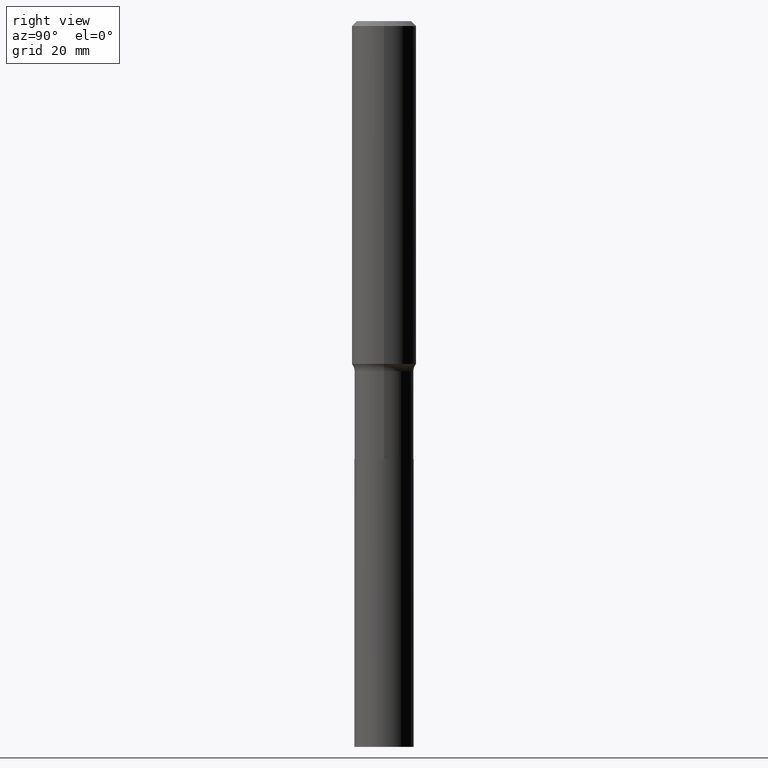
[diagram: clean part render]
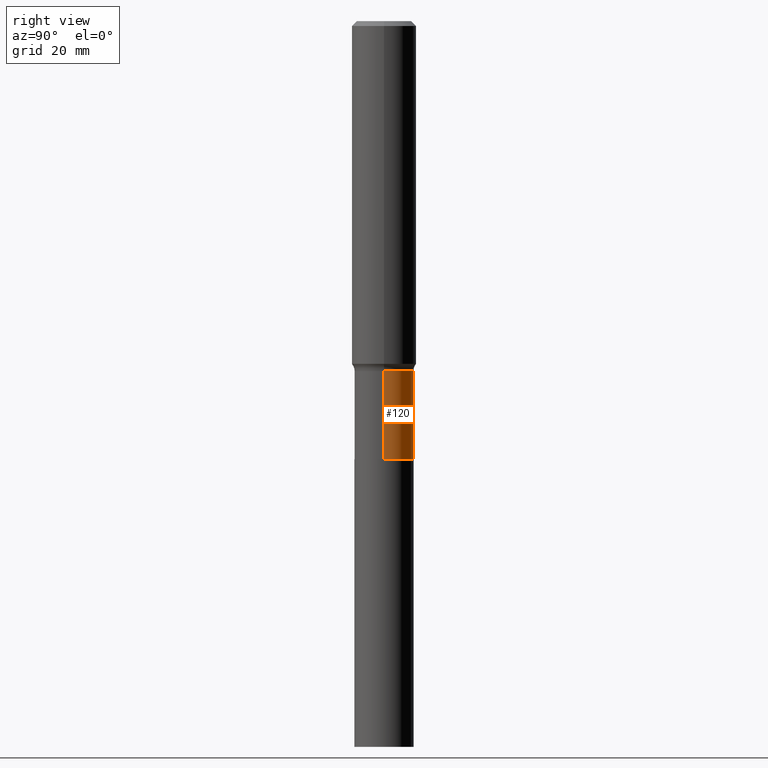
[diagram: same view with one face highlighted and labeled with its STEP entity id]
A machine part, right view. The second image highlights one B-rep face of the part: STEP entity #120.
In plain terms, the highlighted cylindrical surface (edge-blend (fillet) strip) has radius 5.5004 mm, axis along (-0, 0, 1).
Its self-contained STEP definition (entity closure, byte-faithful):
#9 = VERTEX_POINT ( 'NONE', #411 ) ;
#11 = VECTOR ( 'NONE', #77, 39.37007874015748143 ) ;
#31 = CYLINDRICAL_SURFACE ( 'NONE', #457, 0.2165499999999999647 ) ;
#37 = EDGE_CURVE ( 'NONE', #9, #321, #82, .T. ) ;
#51 = VERTEX_POINT ( 'NONE', #426 ) ;
#63 = DIRECTION ( 'NONE',  ( 1.000000000000000000, -6.982962677686263555E-15, 0.000000000000000000 ) ) ;
#72 = CARTESIAN_POINT ( 'NONE',  ( 6.267736550252506452E-29, -8.948666671454983859E-15, -2.563000000000000611 ) ) ;
#77 = DIRECTION ( 'NONE',  ( -2.445468806185136877E-29, 3.491481338843145188E-15, 1.000000000000000000 ) ) ;
#81 = ORIENTED_EDGE ( 'NONE', *, *, #322, .F. ) ;
#82 = CIRCLE ( 'NONE', #444, 0.2165500000000000480 ) ;
#83 = CIRCLE ( 'NONE', #319, 0.2165499999999999370 ) ;
#84 = LINE ( 'NONE', #122, #11 ) ;
#91 = DIRECTION ( 'NONE',  ( 1.000000000000000000, -6.982962677686266711E-15, 4.876176775795936353E-29 ) ) ;
#101 = CARTESIAN_POINT ( 'NONE',  ( -0.2165500000000000203, -8.536861979278111098E-15, -3.208500000000000352 ) ) ;
#120 = ADVANCED_FACE ( 'NONE', ( #136 ), #31, .T. ) ;
#121 = ORIENTED_EDGE ( 'NONE', *, *, #436, .F. ) ;
#122 = CARTESIAN_POINT ( 'NONE',  ( 0.2165499999999999647, -1.512160567852960823E-15, 1.055936080798609895E-29 ) ) ;
#136 = FACE_OUTER_BOUND ( 'NONE', #332, .T. ) ;
#149 = VERTEX_POINT ( 'NONE', #238 ) ;
#155 = ORIENTED_EDGE ( 'NONE', *, *, #423, .T. ) ;
#179 = DIRECTION ( 'NONE',  ( -2.445468806185136597E-29, 3.491481338843145583E-15, 1.000000000000000000 ) ) ;
#182 = ORIENTED_EDGE ( 'NONE', *, *, #37, .T. ) ;
#238 = CARTESIAN_POINT ( 'NONE',  ( 0.2165499999999999370, -1.046082723930794468E-14, -2.563000000000000611 ) ) ;
#276 = CARTESIAN_POINT ( 'NONE',  ( 0.000000000000000000, 0.000000000000000000, 0.000000000000000000 ) ) ;
#319 = AXIS2_PLACEMENT_3D ( 'NONE', #72, #179, #323 ) ;
#321 = VERTEX_POINT ( 'NONE', #101 ) ;
#322 = EDGE_CURVE ( 'NONE', #149, #51, #83, .T. ) ;
#323 = DIRECTION ( 'NONE',  ( 1.000000000000000000, -6.982962677686266711E-15, 0.000000000000000000 ) ) ;
#332 = EDGE_LOOP ( 'NONE', ( #182, #155, #81, #121 ) ) ;
#340 = DIRECTION ( 'NONE',  ( -2.445468806185136877E-29, 3.491481338843145188E-15, 1.000000000000000000 ) ) ;
#345 = DIRECTION ( 'NONE',  ( -2.445468806185136597E-29, 3.491481338843145583E-15, 1.000000000000000000 ) ) ;
#376 = VECTOR ( 'NONE', #340, 39.37007874015748143 ) ;
#411 = CARTESIAN_POINT ( 'NONE',  ( 0.2165500000000000480, -1.271457844353119493E-14, -3.208500000000000352 ) ) ;
#412 = CARTESIAN_POINT ( 'NONE',  ( -0.2165499999999999647, 1.538680294288496702E-15, -1.065195393794699783E-29 ) ) ;
#421 = DIRECTION ( 'NONE',  ( -2.445468806185136597E-29, 3.491481338843145583E-15, 1.000000000000000000 ) ) ;
#423 = EDGE_CURVE ( 'NONE', #321, #51, #451, .T. ) ;
#426 = CARTESIAN_POINT ( 'NONE',  ( -0.2165499999999999370, -8.536861979278112675E-15, -2.563000000000000611 ) ) ;
#436 = EDGE_CURVE ( 'NONE', #9, #149, #84, .T. ) ;
#444 = AXIS2_PLACEMENT_3D ( 'NONE', #463, #421, #63 ) ;
#451 = LINE ( 'NONE', #412, #376 ) ;
#457 = AXIS2_PLACEMENT_3D ( 'NONE', #276, #345, #91 ) ;
#463 = CARTESIAN_POINT ( 'NONE',  ( 7.846286664645011596E-29, -1.120241787567823411E-14, -3.208500000000000352 ) ) ;